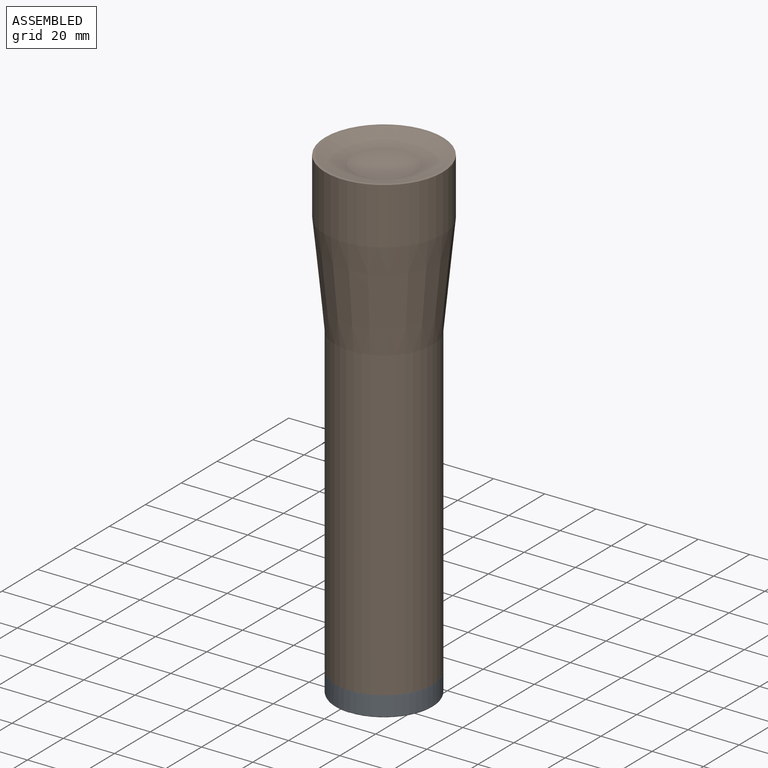
[diagram: assembled view]
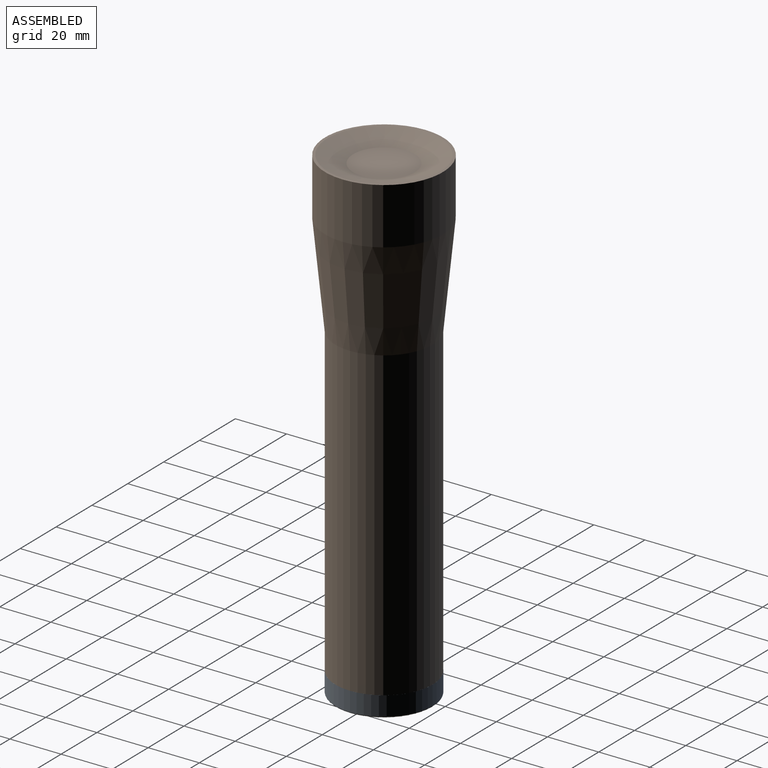
[diagram: assembled view, second angle]
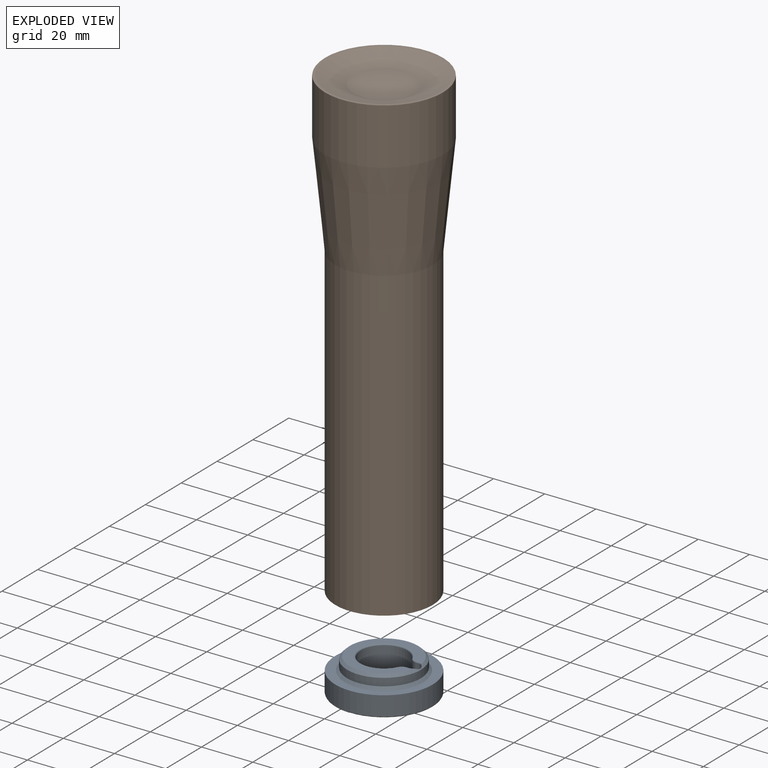
[diagram: exploded view]
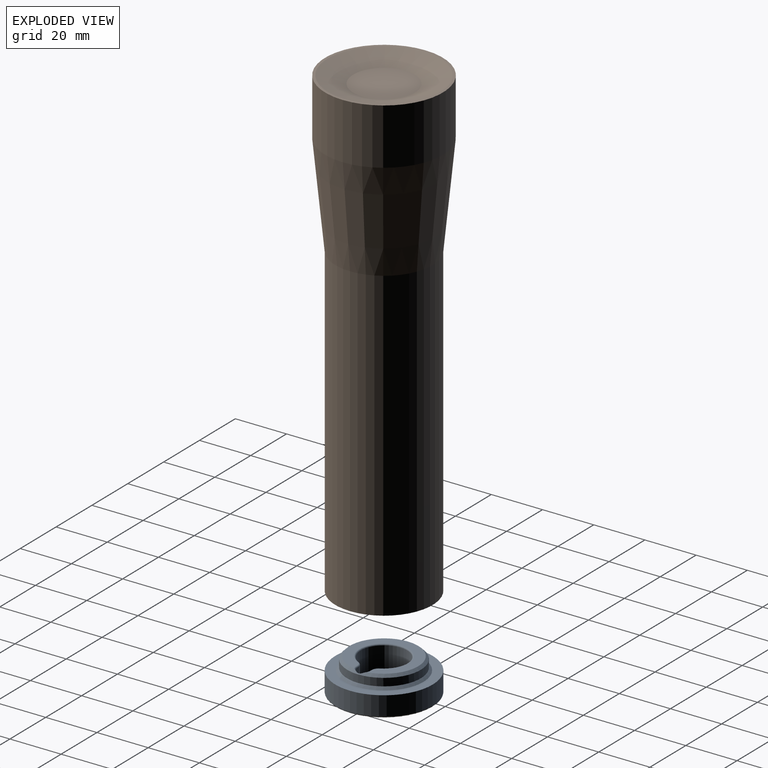
[diagram: exploded view, second angle]
ASSEMBLY  parts=2 mates=2
PART A: 27 faces, bbox 41.1x41.1x13 mm
  f0: cylinder r=9.1mm len=18.2mm, axis (0,0,-1), area 583.1mm2, adj f9,f10,f13,f23
  f1: plane 26.8x26.55mm, normal (0,0,1), area 251mm2, adj f11,f20,f21,f22,f23,f24,f25,f26
  f2: cylinder r=19mm len=38mm, axis (0,0,-1), area 895.4mm2, adj f3,f12
  f3: plane 38x38mm, normal (0,0,1), area 389.1mm2, adj f2,f19
  f4: plane 37x37mm, normal (0,0,-1), area 757.7mm2, adj f12,f13,f14,f15,f16,f17,f18
  f5: cylinder r=14.4mm len=28.8mm, axis (0,0,-1), area 271.4mm2, adj f11,f19
  f6: cylinder r=2.5mm len=12mm, axis (0,0,-1), area 94mm2, adj f7,f8,f11,f18,f20,f26
  f7: plane 12x0.82mm, normal (0,1,0), area 9.9mm2, adj f6,f9,f17,f21
  f8: plane 12x0.82mm, normal (0,-1,0), area 9.9mm2, adj f6,f10,f16,f25
  f9: cylinder r=3mm len=12mm, axis (0,0,-1), area 39.6mm2, adj f0,f7,f15,f22
  f10: cylinder r=3mm len=12mm, axis (0,0,-1), area 39.6mm2, adj f0,f8,f14,f24
  f11: cone r=13.4mm half-angle=45deg, axis (0,0,-1), area 120.5mm2, adj f1,f5,f6,f20,f26
  f12: torus R=18.5mm, axis (0,0,1), area 92.9mm2, adj f2,f4
  f13: torus R=9.6mm, axis (0,0,1), area 38.9mm2, adj f0,f4,f14,f15
  f14: torus R=2.5mm, axis (0,0,1), area 2.4mm2, adj f4,f10,f13,f16
  f15: torus R=2.5mm, axis (0,0,1), area 2.4mm2, adj f4,f9,f13,f17
  f16: cylinder r=0.5mm len=0.82mm, axis (1,0,0), area 0.6mm2, adj f4,f8,f14,f18
  f17: cylinder r=0.5mm len=0.82mm, axis (-1,0,0), area 0.6mm2, adj f4,f7,f15,f18
  f18: torus R=3mm, axis (0,0,1), area 6.6mm2, adj f4,f6,f16,f17
  f19: cone r=14.4mm half-angle=45deg, axis (0,0,-1), area 132.4mm2, adj f3,f5
  f20: torus R=3mm, axis (0,0,1), area 1.7mm2, adj f1,f6,f11,f21
  f21: cylinder r=0.5mm len=0.82mm, axis (1,0,0), area 0.6mm2, adj f1,f7,f20,f22
  f22: torus R=2.5mm, axis (0,0,1), area 2.4mm2, adj f1,f9,f21,f23
  f23: torus R=9.6mm, axis (0,0,1), area 38.9mm2, adj f0,f1,f22,f24
  f24: torus R=2.5mm, axis (0,0,1), area 2.4mm2, adj f1,f10,f23,f25
  f25: cylinder r=0.5mm len=0.82mm, axis (-1,0,0), area 0.6mm2, adj f1,f8,f24,f26
  f26: torus R=3mm, axis (0,0,1), area 1.7mm2, adj f1,f6,f11,f25
PART B: 12 faces, bbox 46x46x182 mm
  f0: cylinder r=23mm len=46mm, axis (0,0,-1), area 3179.3mm2, adj f1,f2
  f1: plane 46x46mm, normal (0,0,-1), area 141.4mm2, adj f0,f10
  f2: cone r=19mm half-angle=5.7deg, axis (0,0,-1), area 5304.2mm2, adj f0,f4
  f3: cylinder r=14.4mm len=119mm, axis (0,0,-1), area 10766.9mm2, adj f8,f11
  f4: cylinder r=19mm len=120mm, axis (0,0,-1), area 14325.7mm2, adj f2,f5
  f5: plane 38x38mm, normal (0,0,1), area 389.1mm2, adj f4,f11
  f6: plane 17.8x17.8mm, normal (0,0,1), area 248.8mm2, adj f7
  f7: cylinder r=8.9mm len=44mm, axis (0,0,1), area 2460.5mm2, adj f6,f8
  f8: plane 28.8x28.8mm, normal (0,0,1), area 402.6mm2, adj f3,f7
  f9: plane 24x24mm, normal (0,0,-1), area 452.4mm2, adj f10
  f10: cone r=12mm half-angle=73.3deg, axis (0,0,-1), area 1115.2mm2, adj f1,f9
  f11: cone r=14.4mm half-angle=45deg, axis (0,0,1), area 132.4mm2, adj f3,f5
PLACE A t=(-31.96,21.76,-59.35)mm
PLACE B rot(axis=(1,0,0),180deg) t=(-31.96,21.76,130.65)mm
MATE cylindrical B.f7 <-> A.f0  axis (0,0,-1) through (-31.96,21.76,68.65)mm
MATE planar B.f2 <-> A.f0  axis (0,0,-1) through (-31.96,21.76,-51.35)mm
